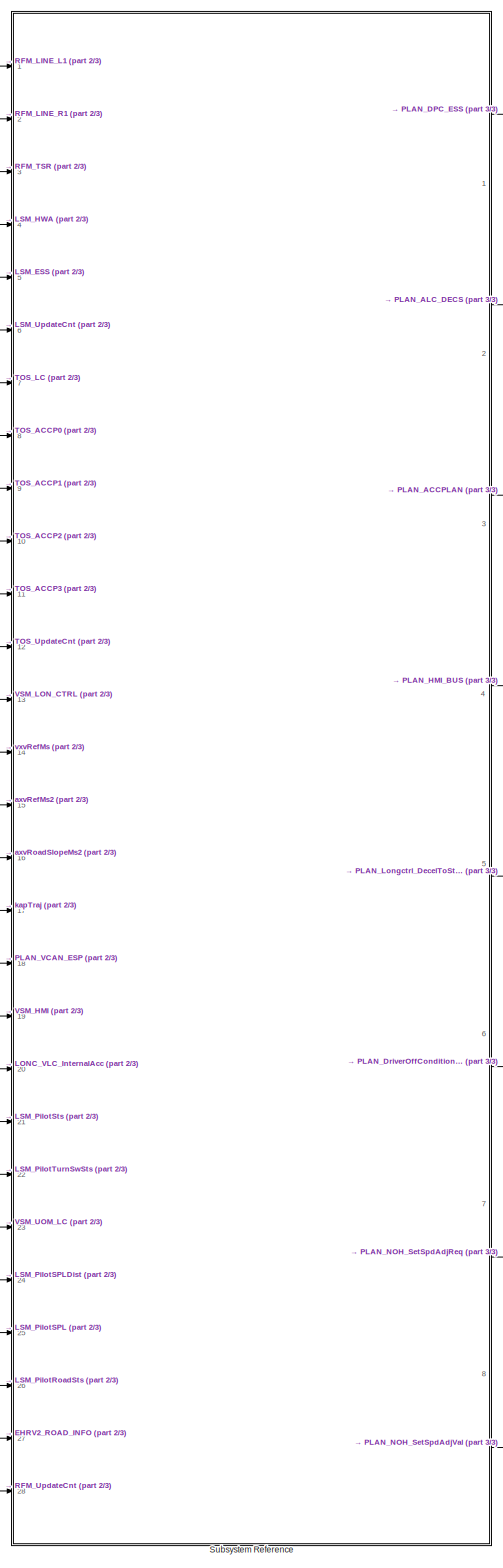
[diagram: root canvas - part 1/3, center side, full height]
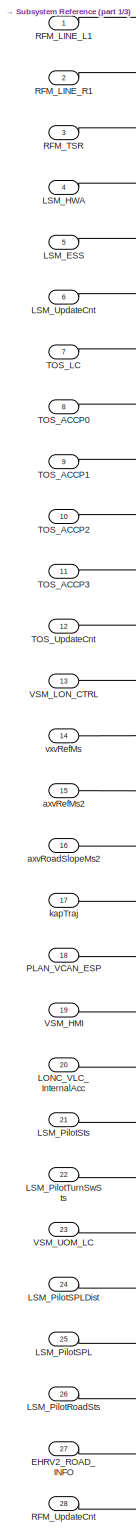
[diagram: root canvas - part 2/3, left side, full height]
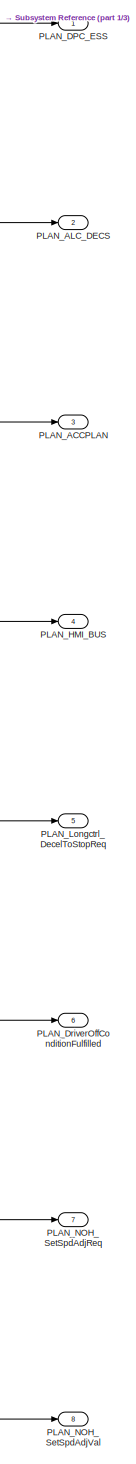
[diagram: root canvas - part 3/3, right side, full height]
MODEL slx_00b9e59a4301
KIND model
CONFIG AbsTol = auto
CONFIG EnableMultiTasking = off
CONFIG FixedStep = auto
CONFIG InitFcn = , if any(exist('rtifpga_mdlclblib', 'file') ~= 0), rtifpga_mdlclblib('Init', bdroot); end,\n, if any(exist('dsmpb_private', 'file') ~= 0), dsmpb_private('dsmpb_mdlclblib', 'Init', bdroot); end,\n
CONFIG MaxStep = auto
CONFIG MinStep = auto
CONFIG PostLoadFcn = if any(exist('dsrtsu_mdlpostloadfcn', 'file') ~= 0), dsrtsu_mdlpostloadfcn('Execute', bdroot); end
CONFIG RelTol = 1e-3
CONFIG SampleTimeConstraint = Unconstrained
CONFIG SolverName = FixedStepAuto
CONFIG StartTime = 0.0
CONFIG StopTime = Inf
BLOCK [Inport] EHRV2_ROAD_INFO
  OutDataTypeStr = Bus: EHRV2_ROAD_INFO_BUS
  Port = 27
BLOCK [Inport] LONC_VLC_InternalAcc
  BusOutputAsStruct = on
  OutDataTypeStr = single
  Port = 20
  PortDimensions = 1
BLOCK [Inport] LSM_ESS
  BusOutputAsStruct = on
  OutDataTypeStr = Bus: LSM_ESS_BUS
  Port = 5
  PortDimensions = 1
BLOCK [Inport] LSM_HWA
  BusOutputAsStruct = on
  OutDataTypeStr = Bus: LSM_HWA_BUS
  Port = 4
  PortDimensions = 1
BLOCK [Inport] LSM_PilotRoadSts
  OutDataTypeStr = uint8
  Port = 26
BLOCK [Inport] LSM_PilotSPL
  OutDataTypeStr = uint8
  Port = 25
BLOCK [Inport] LSM_PilotSPLDist
  OutDataTypeStr = uint16
  Port = 24
BLOCK [Inport] LSM_PilotSts
  BusOutputAsStruct = on
  OutDataTypeStr = uint8
  Port = 21
  PortDimensions = 1
BLOCK [Inport] LSM_PilotTurnSwSts
  BusOutputAsStruct = on
  OutDataTypeStr = uint8
  Port = 22
  PortDimensions = 1
BLOCK [Inport] LSM_UpdateCnt
  BusOutputAsStruct = on
  OutDataTypeStr = uint32
  Port = 6
  PortDimensions = 1
BLOCK [Outport] PLAN_ACCPLAN
  BusOutputAsStruct = on
  OutDataTypeStr = Bus: PLAN_ACCPLAN_BUS
  Port = 3
  PortDimensions = 1
BLOCK [Outport] PLAN_ALC_DECS
  BusOutputAsStruct = on
  OutDataTypeStr = Bus: PLAN_ALC_DECS_BUS
  Port = 2
  PortDimensions = 1
BLOCK [Outport] PLAN_DPC_ESS
  BusOutputAsStruct = on
  OutDataTypeStr = Bus: PLAN_DPC_ESS_BUS
  PortDimensions = 1
BLOCK [Outport] PLAN_DriverOffConditionFulfilled
  OutDataTypeStr = boolean
  Port = 6
BLOCK [Outport] PLAN_HMI_BUS
  OutDataTypeStr = Bus: PLAN_HMI_BUS
  Port = 4
BLOCK [Outport] PLAN_Longctrl_DecelToStopReq
  OutDataTypeStr = boolean
  Port = 5
BLOCK [Outport] PLAN_NOH_SetSpdAdjReq
  OutDataTypeStr = boolean
  Port = 7
BLOCK [Outport] PLAN_NOH_SetSpdAdjVal
  OutDataTypeStr = uint8
  Port = 8
BLOCK [Inport] PLAN_VCAN_ESP
  BusOutputAsStruct = on
  OutDataTypeStr = Bus: VCAN_ESP_MSG_BUS
  Port = 18
  PortDimensions = 1
BLOCK [Inport] RFM_LINE_L1
  BusOutputAsStruct = on
  OutDataTypeStr = Bus: RFM_LINE_BUS
  PortDimensions = 1
BLOCK [Inport] RFM_LINE_R1
  BusOutputAsStruct = on
  OutDataTypeStr = Bus: RFM_LINE_BUS
  Port = 2
  PortDimensions = 1
BLOCK [Inport] RFM_TSR
  BusOutputAsStruct = on
  OutDataTypeStr = Bus: RFM_TSR_BUS
  Port = 3
  PortDimensions = 1
BLOCK [Inport] RFM_UpdateCnt
  Port = 28
BLOCK [SubSystem] Subsystem Reference
  Ports = [28, 8]
  ReferencedSubsystem = PvtSubSys_PLAN_ALL
  RequestExecContextInheritance = off
BLOCK [Inport] TOS_ACCP0
  BusOutputAsStruct = on
  OutDataTypeStr = Bus: TOS_ACCP0_BUS
  Port = 8
  PortDimensions = 1
BLOCK [Inport] TOS_ACCP1
  BusOutputAsStruct = on
  OutDataTypeStr = Bus: TOS_ACCP1_BUS
  Port = 9
  PortDimensions = 1
BLOCK [Inport] TOS_ACCP2
  BusOutputAsStruct = on
  OutDataTypeStr = Bus: TOS_ACCP2_BUS
  Port = 10
  PortDimensions = 1
BLOCK [Inport] TOS_ACCP3
  BusOutputAsStruct = on
  OutDataTypeStr = Bus: TOS_ACCP3_BUS
  Port = 11
  PortDimensions = 1
BLOCK [Inport] TOS_LC
  BusOutputAsStruct = on
  OutDataTypeStr = Bus: TOS_LC_BUS
  Port = 7
  PortDimensions = 1
BLOCK [Inport] TOS_UpdateCnt
  BusOutputAsStruct = on
  OutDataTypeStr = uint32
  Port = 12
  PortDimensions = 1
BLOCK [Inport] VSM_HMI
  BusOutputAsStruct = on
  OutDataTypeStr = Bus: VSM_HMI_BUS
  Port = 19
  PortDimensions = 1
BLOCK [Inport] VSM_LON_CTRL
  BusOutputAsStruct = on
  OutDataTypeStr = Bus: VSM_LON_CTRL_BUS
  Port = 13
  PortDimensions = 1
BLOCK [Inport] VSM_UOM_LC
  BusOutputAsStruct = on
  OutDataTypeStr = Bus: VSM_UOM_LC_BUS
  Port = 23
  PortDimensions = 1
BLOCK [Inport] axvRefMs2
  BusOutputAsStruct = on
  OutDataTypeStr = single
  Port = 15
  PortDimensions = 1
BLOCK [Inport] axvRoadSlopeMs2
  BusOutputAsStruct = on
  OutDataTypeStr = single
  Port = 16
  PortDimensions = 1
BLOCK [Inport] kapTraj
  BusOutputAsStruct = on
  OutDataTypeStr = single
  Port = 17
  PortDimensions = 1
BLOCK [Inport] vxvRefMs
  BusOutputAsStruct = on
  OutDataTypeStr = single
  Port = 14
  PortDimensions = 1
LINE EHRV2_ROAD_INFO:1 -> Subsystem Reference:27
LINE LONC_VLC_InternalAcc:1 -> Subsystem Reference:20
LINE LSM_ESS:1 -> Subsystem Reference:5
LINE LSM_HWA:1 -> Subsystem Reference:4
LINE LSM_PilotRoadSts:1 -> Subsystem Reference:26
LINE LSM_PilotSPL:1 -> Subsystem Reference:25
LINE LSM_PilotSPLDist:1 -> Subsystem Reference:24
LINE LSM_PilotSts:1 -> Subsystem Reference:21
LINE LSM_PilotTurnSwSts:1 -> Subsystem Reference:22
LINE LSM_UpdateCnt:1 -> Subsystem Reference:6
LINE PLAN_VCAN_ESP:1 -> Subsystem Reference:18
LINE RFM_LINE_L1:1 -> Subsystem Reference:1
LINE RFM_LINE_R1:1 -> Subsystem Reference:2
LINE RFM_TSR:1 -> Subsystem Reference:3
LINE RFM_UpdateCnt:1 -> Subsystem Reference:28
LINE Subsystem Reference:1 -> PLAN_DPC_ESS:1
LINE Subsystem Reference:2 -> PLAN_ALC_DECS:1
LINE Subsystem Reference:3 -> PLAN_ACCPLAN:1
LINE Subsystem Reference:4 -> PLAN_HMI_BUS:1
LINE Subsystem Reference:5 -> PLAN_Longctrl_DecelToStopReq:1
LINE Subsystem Reference:6 -> PLAN_DriverOffConditionFulfilled:1
LINE Subsystem Reference:7 -> PLAN_NOH_SetSpdAdjReq:1
LINE Subsystem Reference:8 -> PLAN_NOH_SetSpdAdjVal:1
LINE TOS_ACCP0:1 -> Subsystem Reference:8
LINE TOS_ACCP1:1 -> Subsystem Reference:9
LINE TOS_ACCP2:1 -> Subsystem Reference:10
LINE TOS_ACCP3:1 -> Subsystem Reference:11
LINE TOS_LC:1 -> Subsystem Reference:7
LINE TOS_UpdateCnt:1 -> Subsystem Reference:12
LINE VSM_HMI:1 -> Subsystem Reference:19
LINE VSM_LON_CTRL:1 -> Subsystem Reference:13
LINE VSM_UOM_LC:1 -> Subsystem Reference:23
LINE axvRefMs2:1 -> Subsystem Reference:15
LINE axvRoadSlopeMs2:1 -> Subsystem Reference:16
LINE kapTraj:1 -> Subsystem Reference:17
LINE vxvRefMs:1 -> Subsystem Reference:14
